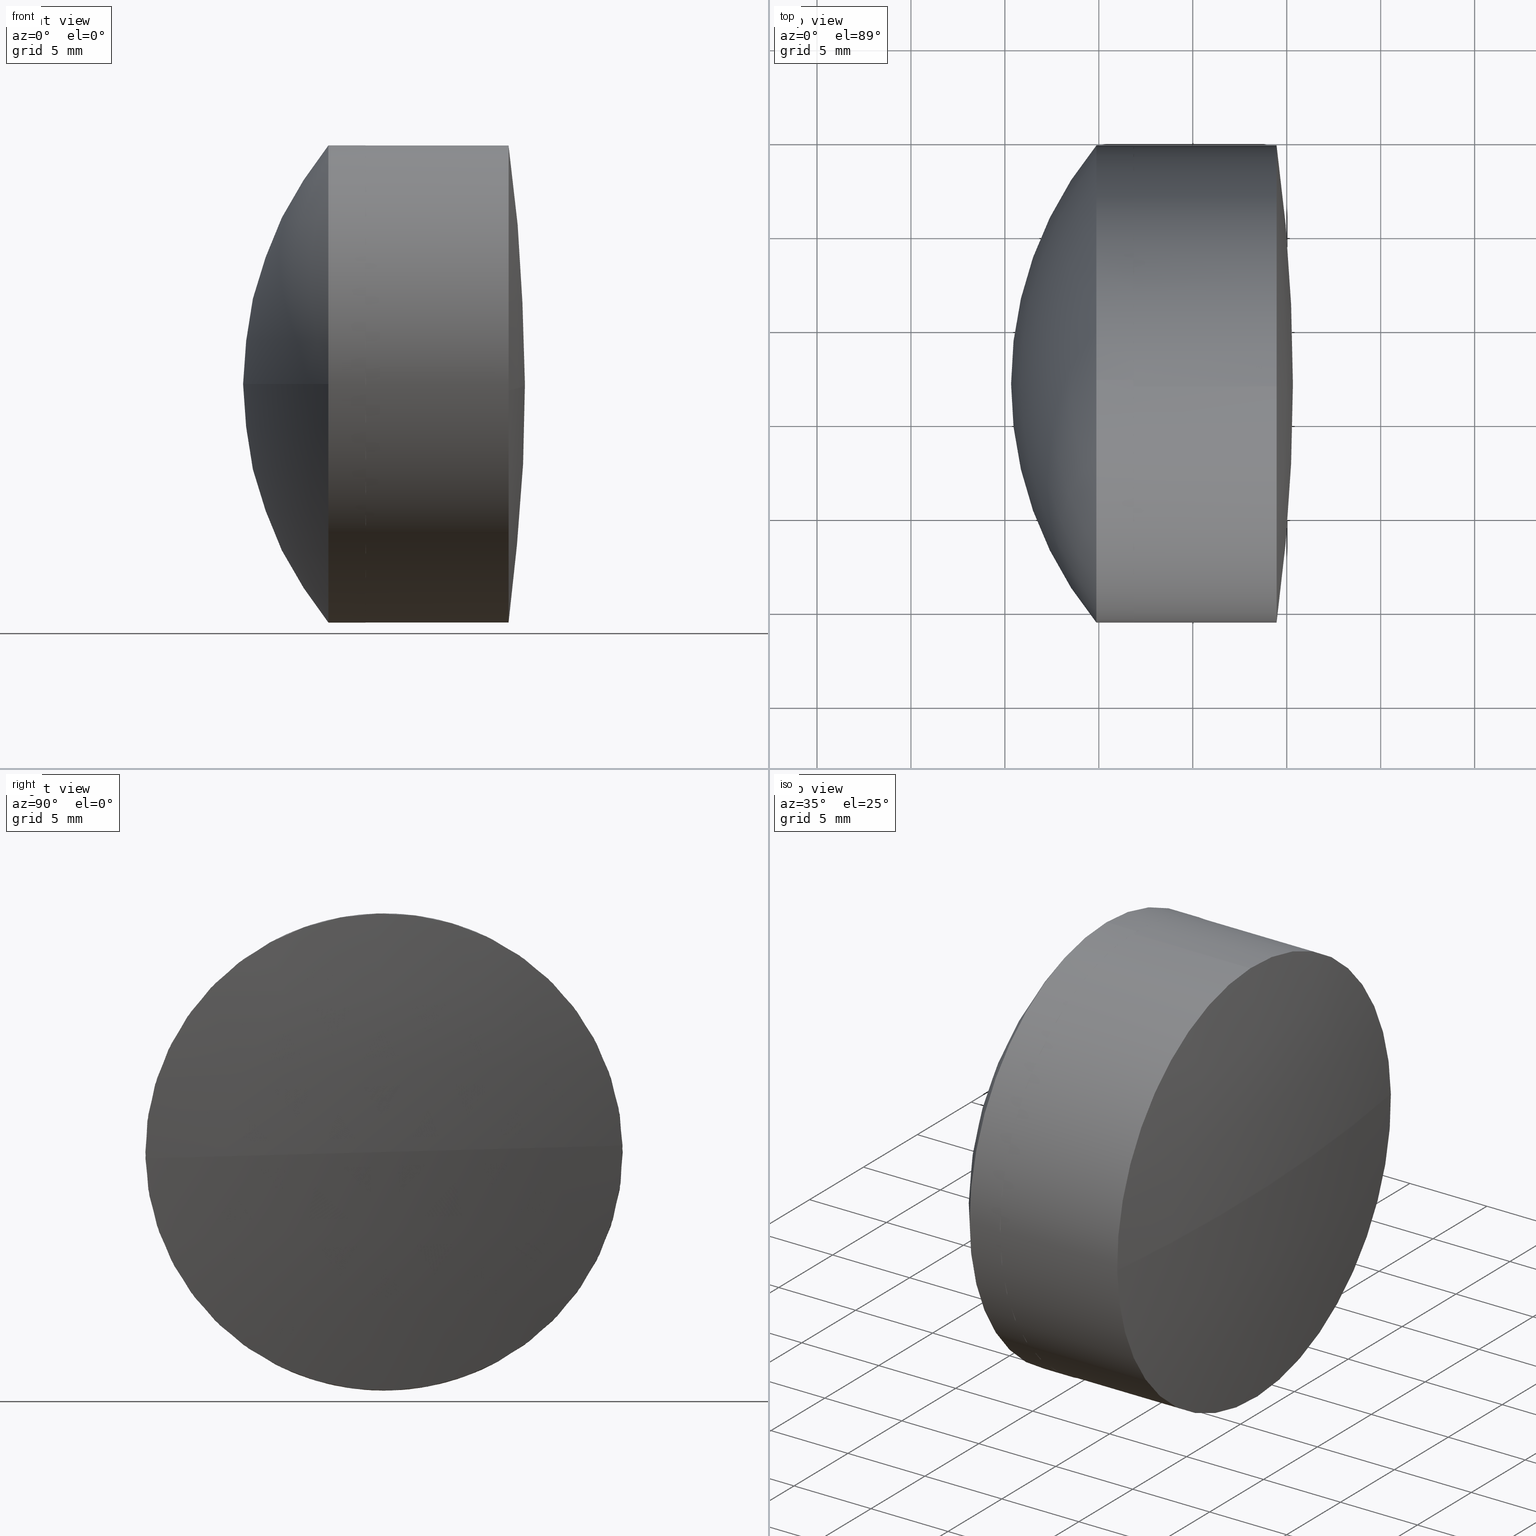
[diagram: canonical four-view strip — front | top / right | iso, engineering-drawing reading convention]
A machine part, canonical four-view strip (front | top / right | iso — engineering-drawing reading convention). The complete STEP part file that produces these views, byte-faithful:
ISO-10303-21;
HEADER;
FILE_DESCRIPTION (( 'STEP AP203' ),
    '1' );
FILE_NAME ('145275.STEP',
    '2024-05-11T05:52:13',
    ( '' ),
    ( '' ),
    'SwSTEP 2.0',
    'SolidWorks 2020',
    '' );
FILE_SCHEMA (( 'CONFIG_CONTROL_DESIGN' ));
ENDSEC;

DATA;
#1 = VERTEX_POINT ( 'NONE', #321 ) ;
#2 = DIRECTION ( 'NONE',  ( -0.000000000000000000, 0.000000000000000000, 1.000000000000000000 ) ) ;
#3 = LOCAL_TIME ( 13, 52, 13.00000000000000000, #389 ) ;
#4 = DIRECTION ( 'NONE',  ( 0.000000000000000000, -0.02683621914088238705, 0.9996398438148724752 ) ) ;
#5 = ORIENTED_EDGE ( 'NONE', *, *, #343, .T. ) ;
#6 = DIRECTION ( 'NONE',  ( 0.000000000000000000, -0.9996398438148723642, -0.02683621914088217889 ) ) ;
#7 = UNCERTAINTY_MEASURE_WITH_UNIT (LENGTH_MEASURE( 1.000000000000000082E-05 ), #246, 'distance_accuracy_value', 'NONE');
#8 = DIRECTION ( 'NONE',  ( -0.000000000000000000, 0.000000000000000000, -1.000000000000000000 ) ) ;
#9 = LOCAL_TIME ( 13, 52, 13.00000000000000000, #351 ) ;
#10 = EDGE_CURVE ( 'NONE', #320, #301, #98, .T. ) ;
#11 = LINE ( 'NONE', #112, #242 ) ;
#12 = CARTESIAN_POINT ( 'NONE',  ( -33.15740189501624968, 19.33284803661706164, -1.555301434917138235E-15 ) ) ;
#13 = ORIENTED_EDGE ( 'NONE', *, *, #123, .T. ) ;
#14 = DIRECTION ( 'NONE',  ( -1.000000000000000000, -0.000000000000000000, -0.000000000000000000 ) ) ;
#15 = APPROVAL_DATE_TIME ( #230, #160 ) ;
#16 = SPHERICAL_SURFACE ( 'NONE', #420, 93.07999999999999829 ) ;
#17 = ORIENTED_EDGE ( 'NONE', *, *, #326, .F. ) ;
#18 = APPROVAL ( #258, 'δָ��' ) ;
#19 = DIRECTION ( 'NONE',  ( -1.000000000000000000, -0.000000000000000000, -0.000000000000000000 ) ) ;
#20 = CIRCLE ( 'NONE', #72, 12.69999999999999929 ) ;
#21 = CARTESIAN_POINT ( 'NONE',  ( -33.15740189501624968, 32.03284803661707514, 5.332114221112828537E-16 ) ) ;
#22 = PERSON_AND_ORGANIZATION ( #129, #60 ) ;
#23 = FACE_OUTER_BOUND ( 'NONE', #154, .T. ) ;
#24 = APPROVAL_ROLE ( '' ) ;
#25 = AXIS2_PLACEMENT_3D ( 'NONE', #412, #105, #196 ) ;
#26 = EDGE_CURVE ( 'NONE', #87, #283, #173, .T. ) ;
#27 = AXIS2_PLACEMENT_3D ( 'NONE', #103, #199, #270 ) ;
#28 = EDGE_CURVE ( 'NONE', #169, #338, #80, .T. ) ;
#29 = ORIENTED_EDGE ( 'NONE', *, *, #10, .T. ) ;
#30 = DIRECTION ( 'NONE',  ( -1.000000000000000000, -0.000000000000000000, -0.000000000000000000 ) ) ;
#31 = ORIENTED_EDGE ( 'NONE', *, *, #267, .F. ) ;
#32 = CARTESIAN_POINT ( 'NONE',  ( -33.15740189501624968, 32.03284803661706093, -12.69999999999999929 ) ) ;
#33 = DIRECTION ( 'NONE',  ( 0.000000000000000000, -0.02683621914088238705, 0.9996398438148724752 ) ) ;
#34 = ORIENTED_EDGE ( 'NONE', *, *, #62, .T. ) ;
#35 = CARTESIAN_POINT ( 'NONE',  ( -25.54043365315157033, 32.03284803661707514, 9.296114308592563594E-16 ) ) ;
#36 = ORIENTED_EDGE ( 'NONE', *, *, #157, .T. ) ;
#37 = EDGE_CURVE ( 'NONE', #83, #397, #151, .T. ) ;
#38 = DIRECTION ( 'NONE',  ( 0.000000000000000000, 1.000000000000000000, 0.000000000000000000 ) ) ;
#39 = AXIS2_PLACEMENT_3D ( 'NONE', #315, #8, #38 ) ;
#40 = ADVANCED_FACE ( 'NONE', ( #91 ), #292, .T. ) ;
#41 = DIRECTION ( 'NONE',  ( 0.000000000000000000, 1.224646799147353207E-16, -1.000000000000000000 ) ) ;
#42 = DIRECTION ( 'NONE',  ( 0.000000000000000000, 0.000000000000000000, 1.000000000000000000 ) ) ;
#43 = CARTESIAN_POINT ( 'NONE',  ( 0.000000000000000000, 0.000000000000000000, 0.000000000000000000 ) ) ;
#44 = CC_DESIGN_DATE_AND_TIME_ASSIGNMENT ( #260, #280, ( #61 ) ) ;
#45 = DIRECTION ( 'NONE',  ( -1.000000000000000000, -0.000000000000000000, -0.000000000000000000 ) ) ;
#46 = ORIENTED_EDGE ( 'NONE', *, *, #177, .F. ) ;
#47 = DIRECTION ( 'NONE',  ( 0.000000000000000000, -0.02683621914088238705, 0.9996398438148724752 ) ) ;
#48 = CARTESIAN_POINT ( 'NONE',  ( -27.66995810697359204, 32.03284803661707514, 8.187873489779038115E-16 ) ) ;
#49 = DATE_AND_TIME ( #90, #9 ) ;
#50 = VERTEX_POINT ( 'NONE', #435 ) ;
#51 = ORIENTED_EDGE ( 'NONE', *, *, #225, .T. ) ;
#52 = CALENDAR_DATE ( 2024, 11, 5 ) ;
#53 = AXIS2_PLACEMENT_3D ( 'NONE', #404, #300, #132 ) ;
#54 = DIRECTION ( 'NONE',  ( 5.113028568288730586E-17, 0.02683621914088218582, -0.9996398438148724752 ) ) ;
#55 = APPLICATION_PROTOCOL_DEFINITION ( 'international standard', 'config_control_design', 1994, #297 ) ;
#56 = CALENDAR_DATE ( 2024, 11, 5 ) ;
#57 = EDGE_LOOP ( 'NONE', ( #101, #273, #34, #259 ) ) ;
#58 = EDGE_CURVE ( 'NONE', #237, #310, #366, .T. ) ;
#59 = CIRCLE ( 'NONE', #305, 17.44000000000000483 ) ;
#60 = ORGANIZATION ( 'δָ��', 'δָ��', '' ) ;
#61 = PRODUCT_DEFINITION ( 'δ֪', '', #194, #208 ) ;
#62 = EDGE_CURVE ( 'NONE', #283, #83, #211, .T. ) ;
#63 = ORIENTED_EDGE ( 'NONE', *, *, #281, .T. ) ;
#64 = CLOSED_SHELL ( 'NONE', ( #371, #127, #405, #235, #382, #40 ) ) ;
#65 = CARTESIAN_POINT ( 'NONE',  ( -19.63995810697359445, 32.03284803661706093, 0.000000000000000000 ) ) ;
#66 = AXIS2_PLACEMENT_3D ( 'NONE', #388, #245, #378 ) ;
#67 = EDGE_LOOP ( 'NONE', ( #269, #180, #255, #425, #374, #341 ) ) ;
#68 = DIRECTION ( 'NONE',  ( -0.000000000000000000, 0.000000000000000000, 1.000000000000000000 ) ) ;
#69 = CARTESIAN_POINT ( 'NONE',  ( -33.15740189501624968, 32.03284803661707514, 5.332114221112828537E-16 ) ) ;
#70 = ORIENTED_EDGE ( 'NONE', *, *, #210, .F. ) ;
#71 = CARTESIAN_POINT ( 'NONE',  ( -45.10995810697360042, 32.03284803661706093, 0.000000000000000000 ) ) ;
#72 = AXIS2_PLACEMENT_3D ( 'NONE', #218, #152, #290 ) ;
#73 = LOCAL_TIME ( 13, 52, 13.00000000000000000, #357 ) ;
#74 = EDGE_LOOP ( 'NONE', ( #317, #331, #13, #139, #137, #195 ) ) ;
#75 = DIRECTION ( 'NONE',  ( 0.000000000000000000, 0.9996398438148724752, 0.02683621914088218582 ) ) ;
#76 = MANIFOLD_SOLID_BREP ( '145275a-1-solid1', #64 ) ;
#77 = DIRECTION ( 'NONE',  ( 5.113028568288731202E-17, 0.02683621914088218582, -0.9996398438148724752 ) ) ;
#78 = ADVANCED_FACE ( 'NONE', ( #358 ), #95, .F. ) ;
#79 = FACE_OUTER_BOUND ( 'NONE', #432, .T. ) ;
#80 = CIRCLE ( 'NONE', #295, 93.08000000000001251 ) ;
#81 = AXIS2_PLACEMENT_3D ( 'NONE', #422, #145, #144 ) ;
#82 = CARTESIAN_POINT ( 'NONE',  ( -27.66995810697359204, 32.03284803661707514, 8.187873489779038115E-16 ) ) ;
#83 = VERTEX_POINT ( 'NONE', #386 ) ;
#84 = CARTESIAN_POINT ( 'NONE',  ( -39.66995810697360270, 32.03284803661706093, 12.69999999999999929 ) ) ;
#85 = CARTESIAN_POINT ( 'NONE',  ( -117.7499581069735797, 32.03284803661707514, -3.869129372501819444E-15 ) ) ;
#86 = PERSON_AND_ORGANIZATION_ROLE ( 'creator' ) ;
#87 = VERTEX_POINT ( 'NONE', #262 ) ;
#88 = ORIENTED_EDGE ( 'NONE', *, *, #162, .F. ) ;
#89 = APPROVAL_STATUS ( 'not_yet_approved' ) ;
#90 = CALENDAR_DATE ( 2024, 11, 5 ) ;
#91 = FACE_OUTER_BOUND ( 'NONE', #74, .T. ) ;
#92 = CARTESIAN_POINT ( 'NONE',  ( -33.15740189501624968, 19.33742202016819434, -0.3408199830892049143 ) ) ;
#93 = AXIS2_PLACEMENT_3D ( 'NONE', #186, #118, #322 ) ;
#94 = CALENDAR_DATE ( 2024, 11, 5 ) ;
#95 = SPHERICAL_SURFACE ( 'NONE', #312, 17.44000000000000128 ) ;
#96 = COORDINATED_UNIVERSAL_TIME_OFFSET ( 8, 0, .AHEAD. ) ;
#97 = PERSON_AND_ORGANIZATION ( #129, #60 ) ;
#98 = CIRCLE ( 'NONE', #336, 12.70000000000000284 ) ;
#99 = VERTEX_POINT ( 'NONE', #360 ) ;
#100 = CARTESIAN_POINT ( 'NONE',  ( -117.7499581069735797, 32.03284803661707514, -3.869129372501819444E-15 ) ) ;
#101 = ORIENTED_EDGE ( 'NONE', *, *, #446, .F. ) ;
#102 = CIRCLE ( 'NONE', #442, 12.70000000000000284 ) ;
#103 = CARTESIAN_POINT ( 'NONE',  ( -45.10995810697359332, 32.03284803661707514, -8.881997365316166523E-17 ) ) ;
#104 = EDGE_CURVE ( 'NONE', #237, #397, #214, .T. ) ;
#105 = DIRECTION ( 'NONE',  ( -1.000000000000000000, -3.326383087162362862E-17, -5.204170427930421283E-17 ) ) ;
#106 = ORIENTED_EDGE ( 'NONE', *, *, #157, .F. ) ;
#107 = DIRECTION ( 'NONE',  ( -1.000000000000000000, -3.326383087162362862E-17, -5.204170427930421283E-17 ) ) ;
#108 = CIRCLE ( 'NONE', #27, 17.44000000000000128 ) ;
#109 = DIRECTION ( 'NONE',  ( -1.000000000000000000, -3.326383087162362862E-17, -5.204170427930421283E-17 ) ) ;
#110 = EDGE_CURVE ( 'NONE', #131, #283, #251, .T. ) ;
#111 = DIRECTION ( 'NONE',  ( 0.000000000000000000, 1.000000000000000000, 1.224646799147353207E-16 ) ) ;
#112 = CARTESIAN_POINT ( 'NONE',  ( -27.66995810697359204, 31.69202805352786712, 12.69542601644888080 ) ) ;
#113 = ORIENTED_EDGE ( 'NONE', *, *, #10, .F. ) ;
#114 = DIRECTION ( 'NONE',  ( 0.000000000000000000, 0.000000000000000000, 1.000000000000000000 ) ) ;
#115 = AXIS2_PLACEMENT_3D ( 'NONE', #65, #2, #272 ) ;
#116 = FACE_OUTER_BOUND ( 'NONE', #67, .T. ) ;
#117 = ORIENTED_EDGE ( 'NONE', *, *, #28, .F. ) ;
#118 = DIRECTION ( 'NONE',  ( -1.000000000000000000, -0.000000000000000000, -0.000000000000000000 ) ) ;
#119 = CARTESIAN_POINT ( 'NONE',  ( -25.54043365315157033, 32.37366801970627961, -12.69542601644887370 ) ) ;
#120 = APPROVAL_ROLE ( '' ) ;
#121 = ORIENTED_EDGE ( 'NONE', *, *, #123, .F. ) ;
#122 = CARTESIAN_POINT ( 'NONE',  ( -33.15740189501624968, 32.03284803661707514, 5.332114221112828537E-16 ) ) ;
#123 = EDGE_CURVE ( 'NONE', #310, #131, #20, .T. ) ;
#124 = CARTESIAN_POINT ( 'NONE',  ( -39.66995810697360270, 32.03284803661706093, -12.69999999999999929 ) ) ;
#125 = CC_DESIGN_APPROVAL ( #329, ( #306 ) ) ;
#126 = SECURITY_CLASSIFICATION_LEVEL ( 'unclassified' ) ;
#127 = ADVANCED_FACE ( 'NONE', ( #447 ), #407, .T. ) ;
#128 = CC_DESIGN_PERSON_AND_ORGANIZATION_ASSIGNMENT ( #215, #398, ( #202 ) ) ;
#129 = PERSON ( 'δָ��', 'δָ��', 'δָ��', ('δָ��'), ('δָ��'), ('δָ��') ) ;
#130 = FACE_OUTER_BOUND ( 'NONE', #57, .T. ) ;
#131 = VERTEX_POINT ( 'NONE', #166 ) ;
#132 = DIRECTION ( 'NONE',  ( 0.000000000000000000, -0.9996398438148723642, -0.02683621914088218582 ) ) ;
#133 = EDGE_CURVE ( 'NONE', #338, #50, #367, .T. ) ;
#134 = ORIENTED_EDGE ( 'NONE', *, *, #28, .T. ) ;
#135 = LOCAL_TIME ( 13, 52, 13.00000000000000000, #96 ) ;
#136 = DIRECTION ( 'NONE',  ( 0.000000000000000000, 0.000000000000000000, 1.000000000000000000 ) ) ;
#137 = ORIENTED_EDGE ( 'NONE', *, *, #26, .F. ) ;
#138 = DIRECTION ( 'NONE',  ( -0.000000000000000000, 0.000000000000000000, -1.000000000000000000 ) ) ;
#139 = ORIENTED_EDGE ( 'NONE', *, *, #110, .T. ) ;
#140 = CARTESIAN_POINT ( 'NONE',  ( -24.66995810697358849, 32.03284803661708224, 1.127865659280562322E-15 ) ) ;
#141 = EDGE_CURVE ( 'NONE', #169, #1, #175, .T. ) ;
#142 = AXIS2_PLACEMENT_3D ( 'NONE', #238, #365, #444 ) ;
#143 = CIRCLE ( 'NONE', #213, 12.70000000000000284 ) ;
#144 = DIRECTION ( 'NONE',  ( 0.000000000000000000, 0.000000000000000000, 1.000000000000000000 ) ) ;
#145 = DIRECTION ( 'NONE',  ( -1.000000000000000000, -0.000000000000000000, -0.000000000000000000 ) ) ;
#146 = ORIENTED_EDGE ( 'NONE', *, *, #133, .T. ) ;
#147 = CARTESIAN_POINT ( 'NONE',  ( -35.12901553471916571, 32.03284803661706093, 12.69999999999999929 ) ) ;
#148 = PERSON_AND_ORGANIZATION_ROLE ( 'creator' ) ;
#149 = FACE_OUTER_BOUND ( 'NONE', #370, .T. ) ;
#150 = ORIENTED_EDGE ( 'NONE', *, *, #446, .T. ) ;
#151 = CIRCLE ( 'NONE', #193, 12.69999999999999929 ) ;
#152 = DIRECTION ( 'NONE',  ( -1.000000000000000000, -0.000000000000000000, -0.000000000000000000 ) ) ;
#153 = AXIS2_PLACEMENT_3D ( 'NONE', #439, #263, #394 ) ;
#154 = EDGE_LOOP ( 'NONE', ( #51, #188, #113, #418, #233, #390 ) ) ;
#155 = MECHANICAL_CONTEXT ( 'NONE', #297, 'mechanical' ) ;
#156 = CARTESIAN_POINT ( 'NONE',  ( -35.12901553471916571, 32.03284803661706093, 0.000000000000000000 ) ) ;
#157 = EDGE_CURVE ( 'NONE', #301, #416, #247, .T. ) ;
#158 = VECTOR ( 'NONE', #426, 1000.000000000000000 ) ;
#159 = APPROVAL_PERSON_ORGANIZATION ( #433, #160, #222 ) ;
#160 = APPROVAL ( #89, 'δָ��' ) ;
#161 = APPROVAL_PERSON_ORGANIZATION ( #97, #329, #120 ) ;
#162 = EDGE_CURVE ( 'NONE', #99, #411, #59, .T. ) ;
#163 = VERTEX_POINT ( 'NONE', #339 ) ;
#164 = DIRECTION ( 'NONE',  ( 0.000000000000000000, 0.000000000000000000, 1.000000000000000000 ) ) ;
#165 = ORIENTED_EDGE ( 'NONE', *, *, #423, .T. ) ;
#166 = CARTESIAN_POINT ( 'NONE',  ( -33.15740189501624968, 32.03284803661706093, 12.69999999999999929 ) ) ;
#167 = AXIS2_PLACEMENT_3D ( 'NONE', #100, #170, #6 ) ;
#168 = DIRECTION ( 'NONE',  ( -1.000000000000000000, -3.326383087162362862E-17, -5.204170427930421283E-17 ) ) ;
#169 = VERTEX_POINT ( 'NONE', #140 ) ;
#170 = DIRECTION ( 'NONE',  ( -5.113028568288731202E-17, -0.02683621914088218582, 0.9996398438148724752 ) ) ;
#171 = ORIENTED_EDGE ( 'NONE', *, *, #37, .T. ) ;
#172 = DIRECTION ( 'NONE',  ( 0.000000000000000000, 0.000000000000000000, 1.000000000000000000 ) ) ;
#173 = CIRCLE ( 'NONE', #266, 12.69999999999999929 ) ;
#174 = CYLINDRICAL_SURFACE ( 'NONE', #232, 12.69999999999999929 ) ;
#175 = CIRCLE ( 'NONE', #167, 93.08000000000001251 ) ;
#176 = AXIS2_PLACEMENT_3D ( 'NONE', #291, #227, #182 ) ;
#177 = EDGE_CURVE ( 'NONE', #411, #237, #376, .T. ) ;
#178 = ORIENTED_EDGE ( 'NONE', *, *, #141, .T. ) ;
#179 = DIRECTION ( 'NONE',  ( -1.000000000000000000, -0.000000000000000000, -0.000000000000000000 ) ) ;
#180 = ORIENTED_EDGE ( 'NONE', *, *, #104, .T. ) ;
#181 = DIRECTION ( 'NONE',  ( 0.000000000000000000, 0.000000000000000000, 1.000000000000000000 ) ) ;
#182 = DIRECTION ( 'NONE',  ( 0.000000000000000000, 1.000000000000000000, 1.224646799147353207E-16 ) ) ;
#183 = DATE_TIME_ROLE ( 'classification_date' ) ;
#184 = ORIENTED_EDGE ( 'NONE', *, *, #343, .F. ) ;
#185 = AXIS2_PLACEMENT_3D ( 'NONE', #307, #275, #136 ) ;
#186 = CARTESIAN_POINT ( 'NONE',  ( -39.66995810697360270, 32.03284803661706093, 0.000000000000000000 ) ) ;
#187 = CARTESIAN_POINT ( 'NONE',  ( -33.15740189501624968, 44.73284803661706377, 0.000000000000000000 ) ) ;
#188 = ORIENTED_EDGE ( 'NONE', *, *, #277, .T. ) ;
#189 = EDGE_CURVE ( 'NONE', #348, #320, #443, .T. ) ;
#190 = PERSON_AND_ORGANIZATION_ROLE ( 'design_supplier' ) ;
#191 = ORIENTED_EDGE ( 'NONE', *, *, #277, .F. ) ;
#192 = APPROVAL_PERSON_ORGANIZATION ( #362, #18, #24 ) ;
#193 = AXIS2_PLACEMENT_3D ( 'NONE', #285, #353, #294 ) ;
#194 = PRODUCT_DEFINITION_FORMATION_WITH_SPECIFIED_SOURCE ( '�κ�', '', #202, .NOT_KNOWN. ) ;
#195 = ORIENTED_EDGE ( 'NONE', *, *, #313, .F. ) ;
#196 = DIRECTION ( 'NONE',  ( 0.000000000000000000, -0.02683621914088239746, 0.9996398438148724752 ) ) ;
#197 = EDGE_CURVE ( 'NONE', #131, #411, #298, .T. ) ;
#198 = ORIENTED_EDGE ( 'NONE', *, *, #162, .T. ) ;
#199 = DIRECTION ( 'NONE',  ( 5.113028568288730586E-17, 0.02683621914088230725, -0.9996398438148724752 ) ) ;
#200 = CC_DESIGN_PERSON_AND_ORGANIZATION_ASSIGNMENT ( #400, #359, ( #306 ) ) ;
#201 = DIRECTION ( 'NONE',  ( 1.000000000000000000, 0.000000000000000000, 0.000000000000000000 ) ) ;
#202 = PRODUCT ( '145275', '145275', '', ( #155 ) ) ;
#203 = EDGE_LOOP ( 'NONE', ( #117, #178, #31, #393 ) ) ;
#204 = DIRECTION ( 'NONE',  ( -1.000000000000000000, -3.326383087162362862E-17, -5.204170427930421283E-17 ) ) ;
#205 = MANIFOLD_SOLID_BREP ( '145275b-1-solid1', #261 ) ;
#206 = ORIENTED_EDGE ( 'NONE', *, *, #141, .F. ) ;
#207 = CARTESIAN_POINT ( 'NONE',  ( -25.54043365315156677, 19.33742202016823342, -0.3408199830892033044 ) ) ;
#208 = DESIGN_CONTEXT ( 'detailed design', #399, 'design' ) ;
#209 = CARTESIAN_POINT ( 'NONE',  ( -35.12901553471916571, 32.03284803661706093, -12.69999999999999929 ) ) ;
#210 = EDGE_CURVE ( 'NONE', #348, #416, #108, .T. ) ;
#211 = CIRCLE ( 'NONE', #440, 12.69999999999999929 ) ;
#212 = FACE_OUTER_BOUND ( 'NONE', #240, .T. ) ;
#213 = AXIS2_PLACEMENT_3D ( 'NONE', #122, #387, #286 ) ;
#214 = LINE ( 'NONE', #124, #158 ) ;
#215 = PERSON_AND_ORGANIZATION ( #129, #60 ) ;
#216 = CARTESIAN_POINT ( 'NONE',  ( -39.66995810697360270, 32.03284803661706093, 0.000000000000000000 ) ) ;
#217 = ORIENTED_EDGE ( 'NONE', *, *, #225, .F. ) ;
#218 = CARTESIAN_POINT ( 'NONE',  ( -33.15740189501624968, 32.03284803661706093, 0.000000000000000000 ) ) ;
#219 = DIRECTION ( 'NONE',  ( 1.000000000000000000, 0.000000000000000000, 0.000000000000000000 ) ) ;
#220 = ORIENTED_EDGE ( 'NONE', *, *, #189, .T. ) ;
#221 = DIRECTION ( 'NONE',  ( -1.000000000000000000, -0.000000000000000000, -0.000000000000000000 ) ) ;
#222 = APPROVAL_ROLE ( '' ) ;
#223 = DATE_AND_TIME ( #94, #3 ) ;
#224 = AXIS2_PLACEMENT_3D ( 'NONE', #226, #179, #181 ) ;
#225 = EDGE_CURVE ( 'NONE', #1, #431, #355, .T. ) ;
#226 = CARTESIAN_POINT ( 'NONE',  ( -33.15740189501624968, 32.03284803661706093, 0.000000000000000000 ) ) ;
#227 = DIRECTION ( 'NONE',  ( 0.000000000000000000, 1.224646799147353207E-16, -1.000000000000000000 ) ) ;
#228 = PERSON_AND_ORGANIZATION ( #129, #60 ) ;
#229 = CARTESIAN_POINT ( 'NONE',  ( -45.10995810697359332, 32.03284803661707514, -8.881997365316166523E-17 ) ) ;
#230 = DATE_AND_TIME ( #323, #135 ) ;
#231 = APPROVAL_STATUS ( 'not_yet_approved' ) ;
#232 = AXIS2_PLACEMENT_3D ( 'NONE', #216, #45, #172 ) ;
#233 = ORIENTED_EDGE ( 'NONE', *, *, #327, .F. ) ;
#234 = DIRECTION ( 'NONE',  ( -0.000000000000000000, 0.000000000000000000, -1.000000000000000000 ) ) ;
#235 = ADVANCED_FACE ( 'NONE', ( #130 ), #417, .T. ) ;
#236 = AXIS2_PLACEMENT_3D ( 'NONE', #379, #282, #311 ) ;
#237 = VERTEX_POINT ( 'NONE', #32 ) ;
#238 = CARTESIAN_POINT ( 'NONE',  ( -25.54043365315157033, 32.03284803661707514, 9.296114308592563594E-16 ) ) ;
#239 = CARTESIAN_POINT ( 'NONE',  ( -27.66995810697359204, 32.37366801970627961, -12.69542601644888080 ) ) ;
#240 = EDGE_LOOP ( 'NONE', ( #70, #220, #29, #36 ) ) ;
#241 = DIRECTION ( 'NONE',  ( 0.000000000000000000, 1.000000000000000000, 0.000000000000000000 ) ) ;
#242 = VECTOR ( 'NONE', #107, 1000.000000000000000 ) ;
#243 = ORIENTED_EDGE ( 'NONE', *, *, #197, .F. ) ;
#244 = DIRECTION ( 'NONE',  ( 5.113028568288730586E-17, 0.02683621914088218582, -0.9996398438148724752 ) ) ;
#245 = DIRECTION ( 'NONE',  ( -0.000000000000000000, 0.000000000000000000, -1.000000000000000000 ) ) ;
#246 =( LENGTH_UNIT ( ) NAMED_UNIT ( * ) SI_UNIT ( .MILLI., .METRE. ) );
#247 = CIRCLE ( 'NONE', #428, 12.70000000000000284 ) ;
#248 = CARTESIAN_POINT ( 'NONE',  ( -45.10995810697360042, 32.03284803661706093, 0.000000000000000000 ) ) ;
#249 = CIRCLE ( 'NONE', #176, 20.03000000000000469 ) ;
#250 = VERTEX_POINT ( 'NONE', #274 ) ;
#251 = LINE ( 'NONE', #84, #401 ) ;
#252 = CYLINDRICAL_SURFACE ( 'NONE', #377, 12.70000000000000107 ) ;
#253 = SPHERICAL_SURFACE ( 'NONE', #39, 20.03000000000000469 ) ;
#254 = PERSON_AND_ORGANIZATION ( #129, #60 ) ;
#255 = ORIENTED_EDGE ( 'NONE', *, *, #37, .F. ) ;
#256 = CARTESIAN_POINT ( 'NONE',  ( -117.7499581069735797, 32.03284803661707514, -3.869129372501819444E-15 ) ) ;
#257 = DIRECTION ( 'NONE',  ( -1.000000000000000000, -3.326383087162362862E-17, -5.204170427930421283E-17 ) ) ;
#258 = APPROVAL_STATUS ( 'not_yet_approved' ) ;
#259 = ORIENTED_EDGE ( 'NONE', *, *, #265, .T. ) ;
#260 = DATE_AND_TIME ( #52, #383 ) ;
#261 = CLOSED_SHELL ( 'NONE', ( #436, #396, #78, #361, #410, #368 ) ) ;
#262 = CARTESIAN_POINT ( 'NONE',  ( -35.12901553471916571, 19.33284803661705809, -1.555301434917138630E-15 ) ) ;
#263 = DIRECTION ( 'NONE',  ( 5.113028568288731202E-17, 0.02683621914088218582, -0.9996398438148724752 ) ) ;
#264 = DATE_AND_TIME ( #56, #73 ) ;
#265 = EDGE_CURVE ( 'NONE', #83, #250, #330, .T. ) ;
#266 = AXIS2_PLACEMENT_3D ( 'NONE', #156, #221, #42 ) ;
#267 = EDGE_CURVE ( 'NONE', #50, #1, #356, .T. ) ;
#268 = CARTESIAN_POINT ( 'NONE',  ( -33.15740189501624968, 32.03284803661707514, 5.332114221112828537E-16 ) ) ;
#269 = ORIENTED_EDGE ( 'NONE', *, *, #177, .T. ) ;
#270 = DIRECTION ( 'NONE',  ( 0.000000000000000000, 0.9996398438148723642, 0.02683621914088230725 ) ) ;
#271 = ORIENTED_EDGE ( 'NONE', *, *, #423, .F. ) ;
#272 = DIRECTION ( 'NONE',  ( 1.000000000000000000, 0.000000000000000000, 0.000000000000000000 ) ) ;
#273 = ORIENTED_EDGE ( 'NONE', *, *, #26, .T. ) ;
#274 = CARTESIAN_POINT ( 'NONE',  ( -39.66995810697360270, 32.03284803661706093, 0.000000000000000000 ) ) ;
#275 = DIRECTION ( 'NONE',  ( -1.000000000000000000, -0.000000000000000000, -0.000000000000000000 ) ) ;
#276 = AXIS2_PLACEMENT_3D ( 'NONE', #334, #138, #241 ) ;
#277 = EDGE_CURVE ( 'NONE', #431, #301, #302, .T. ) ;
#278 =( GEOMETRIC_REPRESENTATION_CONTEXT ( 3 ) GLOBAL_UNCERTAINTY_ASSIGNED_CONTEXT ( ( #7 ) ) GLOBAL_UNIT_ASSIGNED_CONTEXT ( ( #246, #427, #325 ) ) REPRESENTATION_CONTEXT ( 'NONE', 'WORKASPACE' ) );
#279 = CARTESIAN_POINT ( 'NONE',  ( -33.15740189501624968, 44.72827405306595239, 0.3408199830892042481 ) ) ;
#280 = DATE_TIME_ROLE ( 'creation_date' ) ;
#281 = EDGE_CURVE ( 'NONE', #163, #320, #102, .T. ) ;
#282 = DIRECTION ( 'NONE',  ( -1.000000000000000000, -3.326383087162362862E-17, -5.204170427930421283E-17 ) ) ;
#283 = VERTEX_POINT ( 'NONE', #147 ) ;
#284 = CC_DESIGN_PERSON_AND_ORGANIZATION_ASSIGNMENT ( #254, #86, ( #194 ) ) ;
#285 = CARTESIAN_POINT ( 'NONE',  ( -35.12901553471916571, 32.03284803661706093, 0.000000000000000000 ) ) ;
#286 = DIRECTION ( 'NONE',  ( 0.000000000000000000, -0.02683621914088238705, 0.9996398438148724752 ) ) ;
#287 = SPHERICAL_SURFACE ( 'NONE', #66, 17.44000000000000483 ) ;
#288 = CC_DESIGN_APPROVAL ( #160, ( #61 ) ) ;
#289 = EDGE_LOOP ( 'NONE', ( #191, #5, #146, #391, #271, #106 ) ) ;
#290 = DIRECTION ( 'NONE',  ( 0.000000000000000000, 0.000000000000000000, 1.000000000000000000 ) ) ;
#291 = CARTESIAN_POINT ( 'NONE',  ( -19.63995810697359445, 32.03284803661706093, 0.000000000000000000 ) ) ;
#292 = CYLINDRICAL_SURFACE ( 'NONE', #93, 12.69999999999999929 ) ;
#293 = DIRECTION ( 'NONE',  ( 0.000000000000000000, -0.02683621914088239399, 0.9996398438148724752 ) ) ;
#294 = DIRECTION ( 'NONE',  ( 0.000000000000000000, 0.000000000000000000, 1.000000000000000000 ) ) ;
#295 = AXIS2_PLACEMENT_3D ( 'NONE', #256, #346, #349 ) ;
#296 = AXIS2_PLACEMENT_3D ( 'NONE', #384, #244, #421 ) ;
#297 = APPLICATION_CONTEXT ( 'configuration controlled 3d designs of mechanical parts and assemblies' ) ;
#298 = CIRCLE ( 'NONE', #419, 12.69999999999999929 ) ;
#299 = AXIS2_PLACEMENT_3D ( 'NONE', #248, #41, #111 ) ;
#300 = DIRECTION ( 'NONE',  ( -5.113028568288731202E-17, -0.02683621914088218582, 0.9996398438148724752 ) ) ;
#301 = VERTEX_POINT ( 'NONE', #319 ) ;
#302 = LINE ( 'NONE', #239, #337 ) ;
#303 = ORIENTED_EDGE ( 'NONE', *, *, #326, .T. ) ;
#304 = DIRECTION ( 'NONE',  ( 0.000000000000000000, -0.02683621914088239746, 0.9996398438148724752 ) ) ;
#305 = AXIS2_PLACEMENT_3D ( 'NONE', #71, #68, #201 ) ;
#306 = SECURITY_CLASSIFICATION ( '', '', #126 ) ;
#307 = CARTESIAN_POINT ( 'NONE',  ( -33.15740189501624968, 32.03284803661706093, 0.000000000000000000 ) ) ;
#308 = ORIENTED_EDGE ( 'NONE', *, *, #210, .T. ) ;
#309 = DIRECTION ( 'NONE',  ( -1.000000000000000000, -3.326383087162362862E-17, -5.204170427930421283E-17 ) ) ;
#310 = VERTEX_POINT ( 'NONE', #12 ) ;
#311 = DIRECTION ( 'NONE',  ( 0.000000000000000000, -0.02683621914088239746, 0.9996398438148724752 ) ) ;
#312 = AXIS2_PLACEMENT_3D ( 'NONE', #229, #54, #438 ) ;
#313 = EDGE_CURVE ( 'NONE', #397, #87, #369, .T. ) ;
#314 = AXIS2_PLACEMENT_3D ( 'NONE', #82, #109, #345 ) ;
#315 = CARTESIAN_POINT ( 'NONE',  ( -19.63995810697359445, 32.03284803661706093, 0.000000000000000000 ) ) ;
#316 = SPHERICAL_SURFACE ( 'NONE', #153, 93.07999999999999829 ) ;
#317 = ORIENTED_EDGE ( 'NONE', *, *, #104, .F. ) ;
#318 = CARTESIAN_POINT ( 'NONE',  ( -35.12901553471916571, 32.03284803661706093, 0.000000000000000000 ) ) ;
#319 = CARTESIAN_POINT ( 'NONE',  ( -33.15740189501624968, 32.37366801970627961, -12.69542601644887903 ) ) ;
#320 = VERTEX_POINT ( 'NONE', #279 ) ;
#321 = CARTESIAN_POINT ( 'NONE',  ( -25.54043365315156677, 44.72827405306590975, 0.3408199830892035265 ) ) ;
#322 = DIRECTION ( 'NONE',  ( 0.000000000000000000, 0.000000000000000000, 1.000000000000000000 ) ) ;
#323 = CALENDAR_DATE ( 2024, 11, 5 ) ;
#324 = DIRECTION ( 'NONE',  ( -1.000000000000000000, -3.326383087162362862E-17, -5.204170427930421283E-17 ) ) ;
#325 =( NAMED_UNIT ( * ) SI_UNIT ( $, .STERADIAN. ) SOLID_ANGLE_UNIT ( ) );
#326 = EDGE_CURVE ( 'NONE', #99, #310, #409, .T. ) ;
#327 = EDGE_CURVE ( 'NONE', #50, #163, #11, .T. ) ;
#328 = APPROVAL_DATE_TIME ( #264, #329 ) ;
#329 = APPROVAL ( #231, 'δָ��' ) ;
#330 = CIRCLE ( 'NONE', #115, 20.03000000000000469 ) ;
#331 = ORIENTED_EDGE ( 'NONE', *, *, #58, .T. ) ;
#332 = DIRECTION ( 'NONE',  ( 0.000000000000000000, 1.000000000000000000, 0.000000000000000000 ) ) ;
#333 = EDGE_LOOP ( 'NONE', ( #385, #308, #165, #63 ) ) ;
#334 = CARTESIAN_POINT ( 'NONE',  ( -19.63995810697359445, 32.03284803661706093, 0.000000000000000000 ) ) ;
#335 = CARTESIAN_POINT ( 'NONE',  ( -45.10995810697360042, 32.03284803661706093, 0.000000000000000000 ) ) ;
#336 = AXIS2_PLACEMENT_3D ( 'NONE', #21, #324, #47 ) ;
#337 = VECTOR ( 'NONE', #372, 1000.000000000000000 ) ;
#338 = VERTEX_POINT ( 'NONE', #207 ) ;
#339 = CARTESIAN_POINT ( 'NONE',  ( -33.15740189501624968, 31.69202805352786712, 12.69542601644887903 ) ) ;
#340 = CC_DESIGN_PERSON_AND_ORGANIZATION_ASSIGNMENT ( #228, #190, ( #194 ) ) ;
#341 = ORIENTED_EDGE ( 'NONE', *, *, #197, .T. ) ;
#342 = FACE_OUTER_BOUND ( 'NONE', #364, .T. ) ;
#343 = EDGE_CURVE ( 'NONE', #431, #338, #429, .T. ) ;
#344 = FACE_OUTER_BOUND ( 'NONE', #203, .T. ) ;
#345 = DIRECTION ( 'NONE',  ( 0.000000000000000000, -0.02683621914088239399, 0.9996398438148724752 ) ) ;
#346 = DIRECTION ( 'NONE',  ( 5.113028568288730586E-17, 0.02683621914088230725, -0.9996398438148724752 ) ) ;
#347 = FACE_OUTER_BOUND ( 'NONE', #289, .T. ) ;
#348 = VERTEX_POINT ( 'NONE', #424 ) ;
#349 = DIRECTION ( 'NONE',  ( 0.000000000000000000, 0.9996398438148723642, 0.02683621914088230379 ) ) ;
#350 = APPLICATION_PROTOCOL_DEFINITION ( 'international standard', 'config_control_design', 1994, #399 ) ;
#351 = COORDINATED_UNIVERSAL_TIME_OFFSET ( 8, 0, .AHEAD. ) ;
#352 = EDGE_LOOP ( 'NONE', ( #88, #303, #406, #46 ) ) ;
#353 = DIRECTION ( 'NONE',  ( -1.000000000000000000, -0.000000000000000000, -0.000000000000000000 ) ) ;
#354 = COORDINATED_UNIVERSAL_TIME_OFFSET ( 8, 0, .AHEAD. ) ;
#355 = CIRCLE ( 'NONE', #142, 12.69999999999999929 ) ;
#356 = CIRCLE ( 'NONE', #25, 12.69999999999999929 ) ;
#357 = COORDINATED_UNIVERSAL_TIME_OFFSET ( 8, 0, .AHEAD. ) ;
#358 = FACE_OUTER_BOUND ( 'NONE', #333, .T. ) ;
#359 = PERSON_AND_ORGANIZATION_ROLE ( 'classification_officer' ) ;
#360 = CARTESIAN_POINT ( 'NONE',  ( -27.66995810697359914, 32.03284803661706093, 0.000000000000000000 ) ) ;
#361 = ADVANCED_FACE ( 'NONE', ( #212 ), #380, .F. ) ;
#362 = PERSON_AND_ORGANIZATION ( #129, #60 ) ;
#363 = CC_DESIGN_SECURITY_CLASSIFICATION ( #306, ( #194 ) ) ;
#364 = EDGE_LOOP ( 'NONE', ( #171, #403, #150, #445 ) ) ;
#365 = DIRECTION ( 'NONE',  ( -1.000000000000000000, -3.326383087162362862E-17, -5.204170427930421283E-17 ) ) ;
#366 = CIRCLE ( 'NONE', #224, 12.69999999999999929 ) ;
#367 = CIRCLE ( 'NONE', #395, 12.69999999999999929 ) ;
#368 = ADVANCED_FACE ( 'NONE', ( #347 ), #430, .T. ) ;
#369 = CIRCLE ( 'NONE', #81, 12.69999999999999929 ) ;
#370 = EDGE_LOOP ( 'NONE', ( #17, #198, #243, #121 ) ) ;
#371 = ADVANCED_FACE ( 'NONE', ( #116 ), #174, .T. ) ;
#372 = DIRECTION ( 'NONE',  ( -1.000000000000000000, -3.326383087162362862E-17, -5.204170427930421283E-17 ) ) ;
#373 = PRODUCT_RELATED_PRODUCT_CATEGORY ( 'detail', '', ( #202 ) ) ;
#374 = ORIENTED_EDGE ( 'NONE', *, *, #110, .F. ) ;
#375 = CARTESIAN_POINT ( 'NONE',  ( -33.15740189501624968, 32.03284803661706093, 0.000000000000000000 ) ) ;
#376 = CIRCLE ( 'NONE', #185, 12.69999999999999929 ) ;
#377 = AXIS2_PLACEMENT_3D ( 'NONE', #48, #257, #293 ) ;
#378 = DIRECTION ( 'NONE',  ( 0.000000000000000000, 1.000000000000000000, 0.000000000000000000 ) ) ;
#379 = CARTESIAN_POINT ( 'NONE',  ( -25.54043365315157033, 32.03284803661707514, 9.296114308592563594E-16 ) ) ;
#380 = SPHERICAL_SURFACE ( 'NONE', #296, 17.44000000000000128 ) ;
#381 = DIRECTION ( 'NONE',  ( 0.000000000000000000, 0.000000000000000000, 1.000000000000000000 ) ) ;
#382 = ADVANCED_FACE ( 'NONE', ( #149 ), #287, .T. ) ;
#383 = LOCAL_TIME ( 13, 52, 13.00000000000000000, #354 ) ;
#384 = CARTESIAN_POINT ( 'NONE',  ( -45.10995810697359332, 32.03284803661707514, -8.881997365316166523E-17 ) ) ;
#385 = ORIENTED_EDGE ( 'NONE', *, *, #189, .F. ) ;
#386 = CARTESIAN_POINT ( 'NONE',  ( -35.12901553471916571, 44.73284803661706377, 0.000000000000000000 ) ) ;
#387 = DIRECTION ( 'NONE',  ( -1.000000000000000000, -3.326383087162362862E-17, -5.204170427930421283E-17 ) ) ;
#388 = CARTESIAN_POINT ( 'NONE',  ( -45.10995810697360042, 32.03284803661706093, 0.000000000000000000 ) ) ;
#389 = COORDINATED_UNIVERSAL_TIME_OFFSET ( 8, 0, .AHEAD. ) ;
#390 = ORIENTED_EDGE ( 'NONE', *, *, #267, .T. ) ;
#391 = ORIENTED_EDGE ( 'NONE', *, *, #327, .T. ) ;
#392 = APPROVAL_DATE_TIME ( #223, #18 ) ;
#393 = ORIENTED_EDGE ( 'NONE', *, *, #133, .F. ) ;
#394 = DIRECTION ( 'NONE',  ( 0.000000000000000000, 0.9996398438148724752, 0.02683621914088218582 ) ) ;
#395 = AXIS2_PLACEMENT_3D ( 'NONE', #35, #309, #304 ) ;
#396 = ADVANCED_FACE ( 'NONE', ( #79 ), #16, .T. ) ;
#397 = VERTEX_POINT ( 'NONE', #209 ) ;
#398 = PERSON_AND_ORGANIZATION_ROLE ( 'design_owner' ) ;
#399 = APPLICATION_CONTEXT ( 'configuration controlled 3d designs of mechanical parts and assemblies' ) ;
#400 = PERSON_AND_ORGANIZATION ( #129, #60 ) ;
#401 = VECTOR ( 'NONE', #19, 1000.000000000000000 ) ;
#402 = CC_DESIGN_APPROVAL ( #18, ( #194 ) ) ;
#403 = ORIENTED_EDGE ( 'NONE', *, *, #313, .T. ) ;
#404 = CARTESIAN_POINT ( 'NONE',  ( -45.10995810697359332, 32.03284803661707514, -8.881997365316166523E-17 ) ) ;
#405 = ADVANCED_FACE ( 'NONE', ( #342 ), #253, .T. ) ;
#406 = ORIENTED_EDGE ( 'NONE', *, *, #58, .F. ) ;
#407 = SPHERICAL_SURFACE ( 'NONE', #408, 17.44000000000000483 ) ;
#408 = AXIS2_PLACEMENT_3D ( 'NONE', #335, #234, #332 ) ;
#409 = CIRCLE ( 'NONE', #299, 17.44000000000000483 ) ;
#410 = ADVANCED_FACE ( 'NONE', ( #344 ), #316, .T. ) ;
#411 = VERTEX_POINT ( 'NONE', #187 ) ;
#412 = CARTESIAN_POINT ( 'NONE',  ( -25.54043365315157033, 32.03284803661707514, 9.296114308592563594E-16 ) ) ;
#413 = PRODUCT_DEFINITION_SHAPE ( 'NONE', 'NONE',  #61 ) ;
#414 = ADVANCED_BREP_SHAPE_REPRESENTATION ( '145275', ( #76, #205, #441 ), #278 ) ;
#415 = CC_DESIGN_DATE_AND_TIME_ASSIGNMENT ( #49, #183, ( #306 ) ) ;
#416 = VERTEX_POINT ( 'NONE', #92 ) ;
#417 = SPHERICAL_SURFACE ( 'NONE', #276, 20.03000000000000469 ) ;
#418 = ORIENTED_EDGE ( 'NONE', *, *, #281, .F. ) ;
#419 = AXIS2_PLACEMENT_3D ( 'NONE', #375, #30, #164 ) ;
#420 = AXIS2_PLACEMENT_3D ( 'NONE', #85, #77, #75 ) ;
#421 = DIRECTION ( 'NONE',  ( 0.000000000000000000, 0.9996398438148724752, 0.02683621914088218582 ) ) ;
#422 = CARTESIAN_POINT ( 'NONE',  ( -35.12901553471916571, 32.03284803661706093, 0.000000000000000000 ) ) ;
#423 = EDGE_CURVE ( 'NONE', #416, #163, #143, .T. ) ;
#424 = CARTESIAN_POINT ( 'NONE',  ( -27.66995810697359559, 32.03284803661707514, 8.474455329463734039E-16 ) ) ;
#425 = ORIENTED_EDGE ( 'NONE', *, *, #62, .F. ) ;
#426 = DIRECTION ( 'NONE',  ( -1.000000000000000000, -0.000000000000000000, -0.000000000000000000 ) ) ;
#427 =( NAMED_UNIT ( * ) PLANE_ANGLE_UNIT ( ) SI_UNIT ( $, .RADIAN. ) );
#428 = AXIS2_PLACEMENT_3D ( 'NONE', #268, #204, #33 ) ;
#429 = CIRCLE ( 'NONE', #236, 12.69999999999999929 ) ;
#430 = CYLINDRICAL_SURFACE ( 'NONE', #314, 12.70000000000000107 ) ;
#431 = VERTEX_POINT ( 'NONE', #119 ) ;
#432 = EDGE_LOOP ( 'NONE', ( #206, #134, #184, #217 ) ) ;
#433 = PERSON_AND_ORGANIZATION ( #129, #60 ) ;
#434 = CC_DESIGN_PERSON_AND_ORGANIZATION_ASSIGNMENT ( #22, #148, ( #61 ) ) ;
#435 = CARTESIAN_POINT ( 'NONE',  ( -25.54043365315157033, 31.69202805352786712, 12.69542601644887725 ) ) ;
#436 = ADVANCED_FACE ( 'NONE', ( #23 ), #252, .T. ) ;
#437 = SHAPE_DEFINITION_REPRESENTATION ( #413, #414 ) ;
#438 = DIRECTION ( 'NONE',  ( 0.000000000000000000, 0.9996398438148724752, 0.02683621914088218582 ) ) ;
#439 = CARTESIAN_POINT ( 'NONE',  ( -117.7499581069735797, 32.03284803661707514, -3.869129372501819444E-15 ) ) ;
#440 = AXIS2_PLACEMENT_3D ( 'NONE', #318, #14, #114 ) ;
#441 = AXIS2_PLACEMENT_3D ( 'NONE', #43, #381, #219 ) ;
#442 = AXIS2_PLACEMENT_3D ( 'NONE', #69, #168, #4 ) ;
#443 = CIRCLE ( 'NONE', #53, 17.44000000000000128 ) ;
#444 = DIRECTION ( 'NONE',  ( 0.000000000000000000, -0.02683621914088239746, 0.9996398438148724752 ) ) ;
#445 = ORIENTED_EDGE ( 'NONE', *, *, #265, .F. ) ;
#446 = EDGE_CURVE ( 'NONE', #87, #250, #249, .T. ) ;
#447 = FACE_OUTER_BOUND ( 'NONE', #352, .T. ) ;
ENDSEC;
END-ISO-10303-21;
